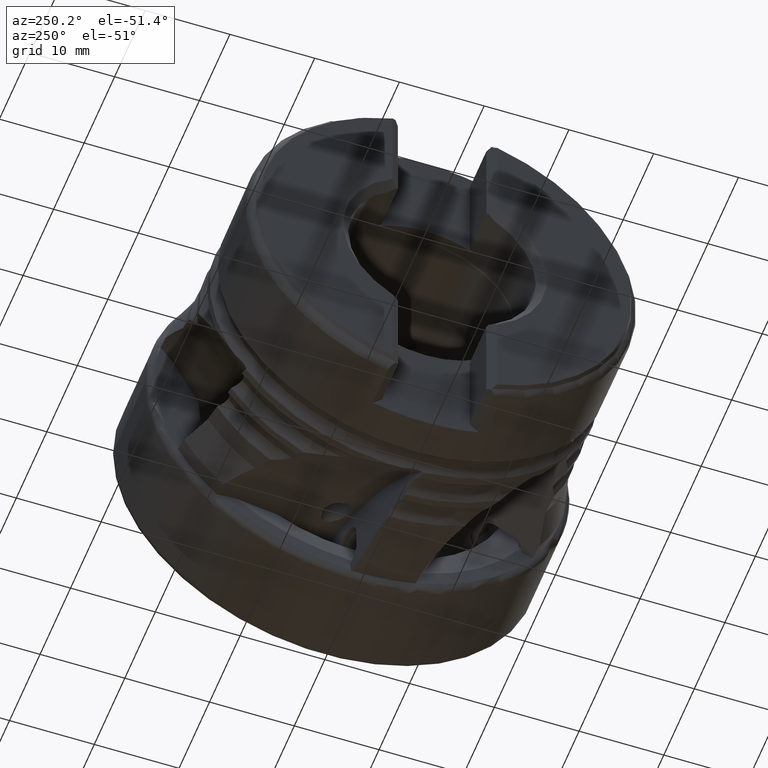
[diagram: clean part render]
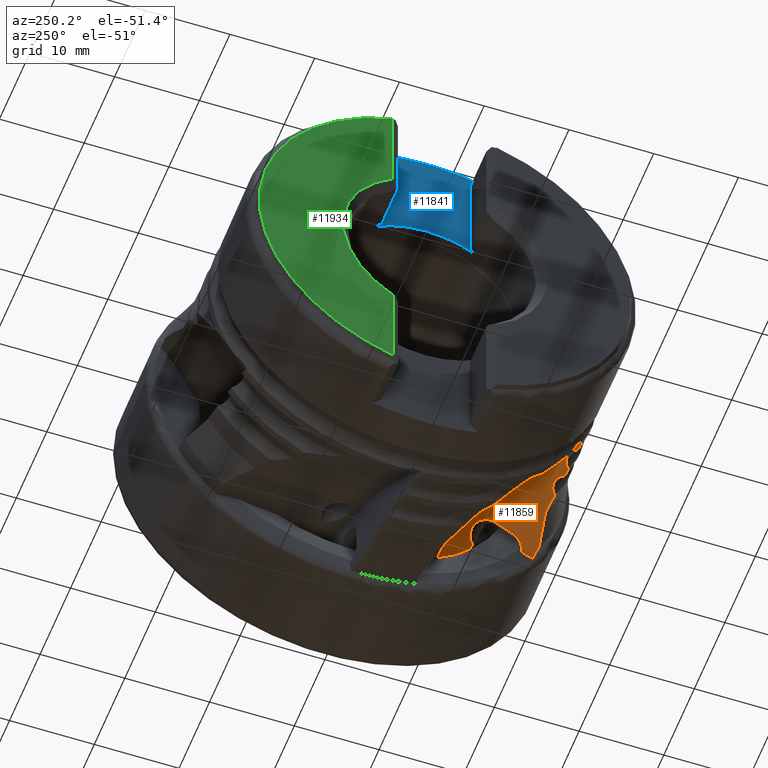
[diagram: same view with three faces highlighted in distinct colors, each labeled with its STEP entity id]
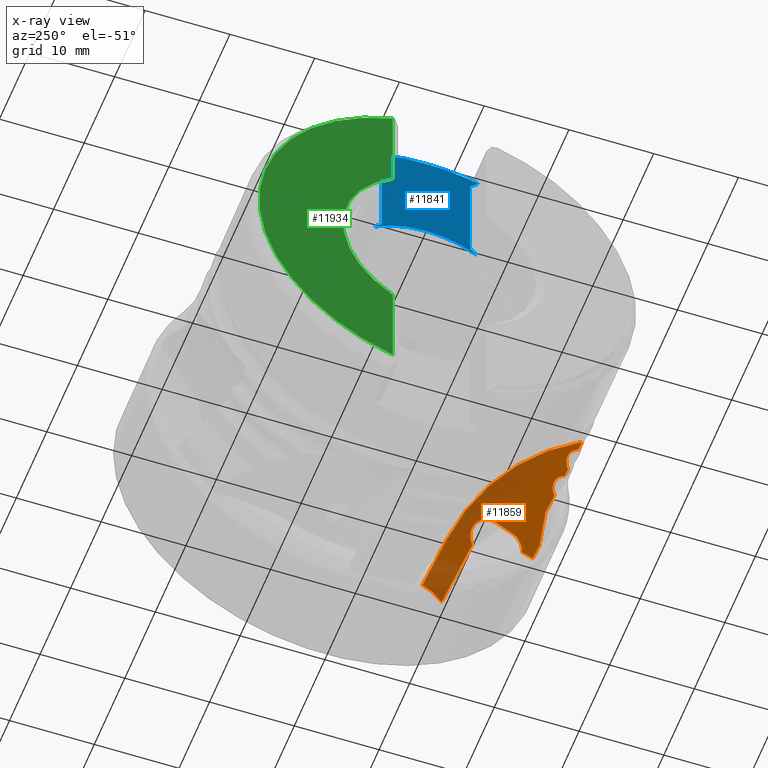
[diagram: x-ray of the same camera — body ghosted, the three highlighted faces saturated]
A machine part, auxiliary view with three faces highlighted in distinct colors.
The next image is the same camera in x-ray (body ghosted, the three faces saturated) — at least one of them is partly hidden behind the body in this view.
Their STEP definitions:

[orange] entity #11859 — the highlighted planar face has unit normal (0.2079, -0.4891, 0.8471).
#557 = EDGE_CURVE ( 'NONE', #4841, #4867, #770, .T. ) ;
#558 = EDGE_CURVE ( 'NONE', #7038, #4891, #764, .T. ) ;
#559 = EDGE_CURVE ( 'NONE', #7088, #4745, #769, .T. ) ;
#561 = EDGE_CURVE ( 'NONE', #4907, #12460, #768, .T. ) ;
#562 = EDGE_CURVE ( 'NONE', #4877, #4912, #5706, .T. ) ;
#564 = EDGE_CURVE ( 'NONE', #12463, #4824, #11466, .T. ) ;
#566 = EDGE_CURVE ( 'NONE', #4824, #4819, #11468, .T. ) ;
#567 = EDGE_CURVE ( 'NONE', #4745, #4761, #11469, .T. ) ;
#578 = EDGE_CURVE ( 'NONE', #12480, #4865, #11460, .T. ) ;
#579 = EDGE_CURVE ( 'NONE', #4862, #12462, #11462, .T. ) ;
#580 = EDGE_CURVE ( 'NONE', #4865, #4924, #11459, .T. ) ;
#582 = EDGE_CURVE ( 'NONE', #4924, #4855, #11464, .T. ) ;
#583 = EDGE_CURVE ( 'NONE', #4855, #12625, #11461, .T. ) ;
#584 = EDGE_CURVE ( 'NONE', #4877, #12616, #5725, .T. ) ;
#587 = EDGE_CURVE ( 'NONE', #4891, #4862, #11455, .T. ) ;
#593 = EDGE_CURVE ( 'NONE', #4819, #4907, #9469, .T. ) ;
#608 = EDGE_CURVE ( 'NONE', #4851, #4856, #5741, .T. ) ;
#609 = EDGE_CURVE ( 'NONE', #4761, #4913, #5738, .T. ) ;
#610 = EDGE_CURVE ( 'NONE', #4856, #4841, #5745, .T. ) ;
#612 = EDGE_CURVE ( 'NONE', #4913, #4851, #5748, .T. ) ;
#617 = EDGE_CURVE ( 'NONE', #4867, #4912, #5749, .T. ) ;
#764 = B_SPLINE_CURVE_WITH_KNOTS ( 'NONE', 3,
 ( #1525, #1518, #1506, #1527 ),
 .UNSPECIFIED., .F., .F.,
 ( 4, 4 ),
 ( 2.137576282117429100E-007, 0.004010652003669368600 ),
 .UNSPECIFIED. ) ;
#768 = B_SPLINE_CURVE_WITH_KNOTS ( 'NONE', 3,
 ( #1538, #1528, #1532, #1539 ),
 .UNSPECIFIED., .F., .F.,
 ( 4, 4 ),
 ( 2.015926449780618800E-007, 0.0001988569394257964800 ),
 .UNSPECIFIED. ) ;
#769 = B_SPLINE_CURVE_WITH_KNOTS ( 'NONE', 3,
 ( #1530, #1529, #1522, #1531 ),
 .UNSPECIFIED., .F., .F.,
 ( 4, 4 ),
 ( 0.0002425770715083387800, 0.0002902572041212796500 ),
 .UNSPECIFIED. ) ;
#770 = B_SPLINE_CURVE_WITH_KNOTS ( 'NONE', 3,
 ( #1517, #1516, #1523, #1524 ),
 .UNSPECIFIED., .F., .F.,
 ( 4, 4 ),
 ( 0.0009686665777163052100, 0.002594467849687828000 ),
 .UNSPECIFIED. ) ;
#820 = DIRECTION ( 'NONE',  ( 0.0000000000000000000, 0.8660254037844396000, 0.4999999999999981100 ) ) ;
#821 = CARTESIAN_POINT ( 'NONE',  ( -1.399999999999999200, 13.64783196858371600, 4.247279619109179700 ) ) ;
#1506 = CARTESIAN_POINT ( 'NONE',  ( -15.55044023032530900, -20.19379681032902600, -11.81812147326370000 ) ) ;
#1516 = CARTESIAN_POINT ( 'NONE',  ( -1.149482092380346400, -12.98690435176323300, -11.19177947410637800 ) ) ;
#1517 = CARTESIAN_POINT ( 'NONE',  ( -1.024066721879104200, -13.42957915904842500, -11.47813973847414100 ) ) ;
#1518 = CARTESIAN_POINT ( 'NONE',  ( -14.30077424985369200, -20.40177048219377200, -12.24491211746680700 ) ) ;
#1522 = CARTESIAN_POINT ( 'NONE',  ( -11.40116357566264100, -20.39272210744054100, -12.95136609103109200 ) ) ;
#1523 = CARTESIAN_POINT ( 'NONE',  ( -1.274803423622056200, -12.54419926205143200, -10.90542480708985300 ) ) ;
#1524 = CARTESIAN_POINT ( 'NONE',  ( -1.399999999999999700, -12.10145407478267100, -10.61907760946900800 ) ) ;
#1525 = CARTESIAN_POINT ( 'NONE',  ( -13.05000000000000600, -20.60644232252976600, -12.67006846107210900 ) ) ;
#1527 = CARTESIAN_POINT ( 'NONE',  ( -16.79882536534509900, -19.98200715656967200, -11.38944204053905000 ) ) ;
#1528 = CARTESIAN_POINT ( 'NONE',  ( -22.60590223760307900, -20.56453872780511500, -10.30048263636702500 ) ) ;
#1529 = CARTESIAN_POINT ( 'NONE',  ( -11.40185207984224100, -20.40677944521225500, -12.95931311287903200 ) ) ;
#1530 = CARTESIAN_POINT ( 'NONE',  ( -11.40205256937151800, -20.42070390249654100, -12.96730319405552800 ) ) ;
#1531 = CARTESIAN_POINT ( 'NONE',  ( -11.40000000000000600, -20.37874676722716700, -12.94358301164896300 ) ) ;
#1532 = CARTESIAN_POINT ( 'NONE',  ( -22.66906056096986400, -20.54165454406415800, -10.27176891986690400 ) ) ;
#1538 = CARTESIAN_POINT ( 'NONE',  ( -22.54021278201284100, -20.55826719501358100, -10.31298453108645500 ) ) ;
#1539 = CARTESIAN_POINT ( 'NONE',  ( -22.70607010177604200, -20.49752539953572800, -10.23720735518743300 ) ) ;
#1540 = CARTESIAN_POINT ( 'NONE',  ( -7.547279779810859100, -11.63785871310080800, -8.842637417601251200 ) ) ;
#1541 = DIRECTION ( 'NONE',  ( 0.9781476007338055800, 0.1039558454088792100, -0.1800568059919560600 ) ) ;
#1542 = CARTESIAN_POINT ( 'NONE',  ( -20.57133231294717000, -19.71692741096195400, -10.31047718064100800 ) ) ;
#1543 = CARTESIAN_POINT ( 'NONE',  ( -20.69283531685525500, -19.74177674621488900, -10.29500235385387100 ) ) ;
#1547 = CARTESIAN_POINT ( 'NONE',  ( -20.45000000000000300, -19.70494015132177200, -10.33333603599665700 ) ) ;
#1548 = CARTESIAN_POINT ( 'NONE',  ( -20.92736265155603100, -19.81507859995505400, -10.27976100301836100 ) ) ;
#1549 = CARTESIAN_POINT ( 'NONE',  ( -21.04320250658468100, -19.86459930032393800, -10.27992015411785300 ) ) ;
#1550 = CARTESIAN_POINT ( 'NONE',  ( -21.36618140685761300, -20.04411331757878800, -10.30429094509144300 ) ) ;
#1551 = CARTESIAN_POINT ( 'NONE',  ( -21.55471376667649300, -20.20770841106819700, -10.35246938927533300 ) ) ;
#1552 = CARTESIAN_POINT ( 'NONE',  ( -21.69392989822397400, -20.40034533142523200, -10.42951927445906400 ) ) ;
#1553 = CARTESIAN_POINT ( 'NONE',  ( -21.69392989822397400, -20.40034533142523200, -10.42951927445906400 ) ) ;
#1554 = CARTESIAN_POINT ( 'NONE',  ( -11.40000000000000600, -20.37874676722716700, -12.94358301164896300 ) ) ;
#1555 = CARTESIAN_POINT ( 'NONE',  ( -21.73105863074181700, -20.45172130782605200, -10.45006836274156100 ) ) ;
#1560 = CARTESIAN_POINT ( 'NONE',  ( -11.36686963164595300, -19.98082836448712400, -12.72197620502739700 ) ) ;
#1562 = CARTESIAN_POINT ( 'NONE',  ( -21.79463535868212500, -20.48661363066085500, -10.45460923499195300 ) ) ;
#1563 = CARTESIAN_POINT ( 'NONE',  ( -21.85978721798716900, -20.49290960267422400, -10.44225339745318800 ) ) ;
#1566 = CARTESIAN_POINT ( 'NONE',  ( -11.33374235923474100, -19.58291008690244400, -12.50036871079865400 ) ) ;
#1567 = CARTESIAN_POINT ( 'NONE',  ( -11.30061877378876800, -19.18499195844299300, -12.27876039773706500 ) ) ;
#1594 = CARTESIAN_POINT ( 'NONE',  ( -24.07098776238456800, -20.05111872187188700, -9.644470073474474600 ) ) ;
#1596 = CARTESIAN_POINT ( 'NONE',  ( -24.19256349179416100, -20.07521574707099500, -9.628543050588074700 ) ) ;
#1602 = CARTESIAN_POINT ( 'NONE',  ( -19.10572477860347700, -20.22030288043726600, -10.96081864930261000 ) ) ;
#1603 = CARTESIAN_POINT ( 'NONE',  ( -23.95000000000000600, -20.03991395728009600, -9.667696136350707900 ) ) ;
#1604 = CARTESIAN_POINT ( 'NONE',  ( -19.16900585699800500, -20.19791887175685500, -10.93236358011545500 ) ) ;
#1605 = CARTESIAN_POINT ( 'NONE',  ( -24.42692924046616900, -20.14706926265063900, -9.612505160867490500 ) ) ;
#1606 = CARTESIAN_POINT ( 'NONE',  ( -24.54272077775723600, -20.19587902241915200, -9.612265709285686900 ) ) ;
#1607 = CARTESIAN_POINT ( 'NONE',  ( -24.86612945412110800, -20.37386689524632600, -9.635649896473419000 ) ) ;
#1608 = CARTESIAN_POINT ( 'NONE',  ( -25.05472308990571100, -20.53673354133000500, -9.683392731828981000 ) ) ;
#1609 = CARTESIAN_POINT ( 'NONE',  ( -25.19392989822397800, -20.72891297589699600, -9.760180775754379900 ) ) ;
#1610 = CARTESIAN_POINT ( 'NONE',  ( -25.19392989822397800, -20.72891297589699600, -9.760180775754379900 ) ) ;
#1611 = CARTESIAN_POINT ( 'NONE',  ( -19.04021278201283700, -20.21365711437073300, -10.97306092494931200 ) ) ;
#1612 = CARTESIAN_POINT ( 'NONE',  ( -25.23105913155223200, -20.78017106558862900, -9.780661679195095100 ) ) ;
#1613 = CARTESIAN_POINT ( 'NONE',  ( -19.20607010177603500, -20.15401519682392000, -10.89791876386984800 ) ) ;
#1615 = CARTESIAN_POINT ( 'NONE',  ( -25.35978721798717200, -20.82065005746953500, -9.772437320566130100 ) ) ;
#1617 = CARTESIAN_POINT ( 'NONE',  ( -25.29475390656892100, -20.81475555232528100, -9.784995848814174800 ) ) ;
#1618 = CARTESIAN_POINT ( 'NONE',  ( -25.35978721798717200, -20.82065005746953500, -9.772437320566130100 ) ) ;
#1619 = CARTESIAN_POINT ( 'NONE',  ( -26.04021278201283700, -20.88192434008013300, -9.640810954228317800 ) ) ;
#1620 = CARTESIAN_POINT ( 'NONE',  ( -25.58665846267767200, -20.84121326885542700, -9.728626404795681600 ) ) ;
#1624 = CARTESIAN_POINT ( 'NONE',  ( -26.10609858929016600, -20.88781895826997800, -9.628043255365812000 ) ) ;
#1625 = CARTESIAN_POINT ( 'NONE',  ( -25.81346773719534200, -20.86163809755127500, -9.684750803650057800 ) ) ;
#1626 = CARTESIAN_POINT ( 'NONE',  ( -26.04021278201283700, -20.88192434008013300, -9.640810954228317800 ) ) ;
#1627 = CARTESIAN_POINT ( 'NONE',  ( -26.16913082770867800, -20.86438258675172400, -9.599041679289664200 ) ) ;
#1628 = CARTESIAN_POINT ( 'NONE',  ( -26.20607010177603500, -20.81999527750117800, -9.564348309348872600 ) ) ;
#1632 = CARTESIAN_POINT ( 'NONE',  ( -7.547279779810860800, -34.24112175187469400, -21.89263741760120400 ) ) ;
#1633 = DIRECTION ( 'NONE',  ( 0.2079116908177598100, -0.4890738003669008500, 0.8471006708862749400 ) ) ;
#1634 = DIRECTION ( 'NONE',  ( 0.0000000000000000000, -0.8660254037844397100, -0.4999999999999981100 ) ) ;
#1635 = CARTESIAN_POINT ( 'NONE',  ( -16.79882536534509900, -19.98200715656967200, -11.38944204053905000 ) ) ;
#1638 = CARTESIAN_POINT ( 'NONE',  ( -17.54606420872142500, -20.06066014661924200, -11.25145067937648800 ) ) ;
#1643 = CARTESIAN_POINT ( 'NONE',  ( -18.29322007020580500, -20.13787956103042400, -11.11265200994039800 ) ) ;
#1644 = CARTESIAN_POINT ( 'NONE',  ( -19.04021278201283700, -20.21365711437073300, -10.97306092494931200 ) ) ;
#1654 = CARTESIAN_POINT ( 'NONE',  ( -21.85978721798716900, -20.49290960267422400, -10.44225339745318800 ) ) ;
#1660 = CARTESIAN_POINT ( 'NONE',  ( -22.08663503382471700, -20.51483111842514300, -10.39923244943189600 ) ) ;
#1670 = CARTESIAN_POINT ( 'NONE',  ( -22.31344430484151400, -20.53661705454752400, -10.35614268488462900 ) ) ;
#1672 = CARTESIAN_POINT ( 'NONE',  ( -22.54021278201284100, -20.55826719501358100, -10.31298453108645500 ) ) ;
#1739 = DIRECTION ( 'NONE',  ( 0.9781476007338055800, 0.1039558454088791200, -0.1800568059919560900 ) ) ;
#1740 = CARTESIAN_POINT ( 'NONE',  ( -7.547279779810852000, -14.12285502836590100, -10.27735070915477800 ) ) ;
#1741 = CARTESIAN_POINT ( 'NONE',  ( -10.48756968981897900, -15.43660024115562600, -10.31417952811447100 ) ) ;
#1742 = DIRECTION ( 'NONE',  ( -0.2079116908177597000, 0.4890738003669010700, -0.8471006708862750500 ) ) ;
#1744 = DIRECTION ( 'NONE',  ( 0.0000000000000000000, -0.8660254037844398200, -0.4999999999999977800 ) ) ;
#1745 = CARTESIAN_POINT ( 'NONE',  ( -12.54167965135997100, -30.16436582265319500, -18.31309989437627900 ) ) ;
#1747 = DIRECTION ( 'NONE',  ( 2.422603434897486600E-017, 0.8660254037844397100, 0.4999999999999981700 ) ) ;
#1748 = CARTESIAN_POINT ( 'NONE',  ( -10.48756968981897900, -17.42845866985983600, -11.46417952811446600 ) ) ;
#1749 = DIRECTION ( 'NONE',  ( -0.2079116908177597000, 0.4890738003669010700, -0.8471006708862750500 ) ) ;
#1750 = DIRECTION ( 'NONE',  ( 0.0000000000000000000, -0.8660254037844396000, -0.4999999999999986100 ) ) ;
#2401 =( BOUNDED_CURVE ( )  B_SPLINE_CURVE ( 3, ( #6302, #6312, #6313, #6314 ),
 .UNSPECIFIED., .F., .F. ) 
 B_SPLINE_CURVE_WITH_KNOTS ( ( 4, 4 ),
 ( 1.528631621026970400, 1.543121029144235900 ),
 .UNSPECIFIED. ) 
 CURVE ( )  GEOMETRIC_REPRESENTATION_ITEM ( )  RATIONAL_B_SPLINE_CURVE ( ( 1.000000000000000000, 0.9999825048308883500, 0.9999825048308883500, 1.000000000000000000 ) ) 
 REPRESENTATION_ITEM ( '' )  );
#2431 = B_SPLINE_CURVE_WITH_KNOTS ( 'NONE', 3,
 ( #6618, #6614, #6621, #6622 ),
 .UNSPECIFIED., .F., .F.,
 ( 4, 4 ),
 ( 3.595619030851296600E-007, 1.868824423346793700E-005 ),
 .UNSPECIFIED. ) ;
#2507 = B_SPLINE_CURVE_WITH_KNOTS ( 'NONE', 3,
 ( #7759, #7766, #7772, #7773, #7774, #7775, #7776, #7777, #7778, #7779 ),
 .UNSPECIFIED., .F., .F.,
 ( 4, 2, 2, 2, 4 ),
 ( 3.563221534652673900E-007, 0.0003723061227592907800, 0.0007442559233651162300, 0.001116205723970941900, 0.001488155524576767300 ),
 .UNSPECIFIED. ) ;
#2533 = B_SPLINE_CURVE_WITH_KNOTS ( 'NONE', 3,
 ( #8023, #8024, #8029, #8030, #8031, #8032, #8033, #8034, #8035, #8036 ),
 .UNSPECIFIED., .F., .F.,
 ( 4, 2, 2, 2, 4 ),
 ( 3.578053203621264000E-007, 0.0003733880702147049800, 0.0007464183351090478200, 0.001119448600003390600, 0.001492478864897733500 ),
 .UNSPECIFIED. ) ;
#2861 = EDGE_LOOP ( 'NONE', ( #9767, #9729, #9744, #9790, #9837, #9709, #9926, #9779, #9746, #9840, #9886, #9824, #9889, #9884, #9925, #9904, #9717, #9900, #9776, #9740, #9791, #9802, #12766, #12558, #12408 ) ) ;
#3990 = AXIS2_PLACEMENT_3D ( 'NONE', #1632, #1633, #1634 ) ;
#3994 = AXIS2_PLACEMENT_3D ( 'NONE', #1741, #1742, #1744 ) ;
#3995 = AXIS2_PLACEMENT_3D ( 'NONE', #1748, #1749, #1750 ) ;
#4745 = VERTEX_POINT ( 'NONE', #7114 ) ;
#4761 = VERTEX_POINT ( 'NONE', #7143 ) ;
#4819 = VERTEX_POINT ( 'NONE', #7152 ) ;
#4824 = VERTEX_POINT ( 'NONE', #7162 ) ;
#4841 = VERTEX_POINT ( 'NONE', #7171 ) ;
#4851 = VERTEX_POINT ( 'NONE', #7166 ) ;
#4855 = VERTEX_POINT ( 'NONE', #7169 ) ;
#4856 = VERTEX_POINT ( 'NONE', #7179 ) ;
#4862 = VERTEX_POINT ( 'NONE', #7184 ) ;
#4865 = VERTEX_POINT ( 'NONE', #7178 ) ;
#4867 = VERTEX_POINT ( 'NONE', #7188 ) ;
#4877 = VERTEX_POINT ( 'NONE', #7196 ) ;
#4891 = VERTEX_POINT ( 'NONE', #7206 ) ;
#4907 = VERTEX_POINT ( 'NONE', #7218 ) ;
#4912 = VERTEX_POINT ( 'NONE', #7216 ) ;
#4913 = VERTEX_POINT ( 'NONE', #7222 ) ;
#4924 = VERTEX_POINT ( 'NONE', #7230 ) ;
#5225 = PLANE ( 'NONE',  #9148 ) ;
#5226 = CARTESIAN_POINT ( 'NONE',  ( -7.547279779810859100, -29.63356959050235400, -19.23246593692766000 ) ) ;
#5231 = DIRECTION ( 'NONE',  ( 0.2079116908177596500, -0.4890738003669010100, 0.8471006708862749400 ) ) ;
#5232 = DIRECTION ( 'NONE',  ( 0.0000000000000000000, -0.8660254037844396000, -0.4999999999999981100 ) ) ;
#5706 = LINE ( 'NONE', #1540, #5715 ) ;
#5715 = VECTOR ( 'NONE', #1541, 1000.000000000000000 ) ;
#5725 = CIRCLE ( 'NONE', #3990, 26.10000000000000100 ) ;
#5738 = CIRCLE ( 'NONE', #3995, 2.099999999999996500 ) ;
#5741 = CIRCLE ( 'NONE', #3994, 2.100000000000000100 ) ;
#5745 = LINE ( 'NONE', #1740, #5747 ) ;
#5747 = VECTOR ( 'NONE', #1739, 1000.000000000000100 ) ;
#5748 = LINE ( 'NONE', #1745, #5750 ) ;
#5749 = LINE ( 'NONE', #821, #5755 ) ;
#5750 = VECTOR ( 'NONE', #1747, 1000.000000000000000 ) ;
#5755 = VECTOR ( 'NONE', #820, 1000.000000000000200 ) ;
#6077 = FACE_OUTER_BOUND ( 'NONE', #2861, .T. ) ;
#6302 = CARTESIAN_POINT ( 'NONE',  ( -11.40205256937151800, -20.42070390249654100, -12.96730319405552800 ) ) ;
#6312 = CARTESIAN_POINT ( 'NONE',  ( -11.95122454787713700, -20.48333396641515200, -12.86867436032372300 ) ) ;
#6313 = CARTESIAN_POINT ( 'NONE',  ( -12.50054996862778000, -20.54524785628687100, -12.76959438257494900 ) ) ;
#6314 = CARTESIAN_POINT ( 'NONE',  ( -13.05000000000000600, -20.60644232252976600, -12.67006846107210900 ) ) ;
#6614 = CARTESIAN_POINT ( 'NONE',  ( -26.20946896057359500, -20.81591110962416400, -9.561156100822378400 ) ) ;
#6618 = CARTESIAN_POINT ( 'NONE',  ( -26.20607010177603500, -20.81999527750117800, -9.564348309348872600 ) ) ;
#6621 = CARTESIAN_POINT ( 'NONE',  ( -26.21289446719891800, -20.81185241446177200, -9.557972058553643200 ) ) ;
#6622 = CARTESIAN_POINT ( 'NONE',  ( -26.21634643813227000, -20.80781901658711800, -9.554796126302818500 ) ) ;
#7038 = VERTEX_POINT ( 'NONE', #7308 ) ;
#7088 = VERTEX_POINT ( 'NONE', #7327 ) ;
#7114 = CARTESIAN_POINT ( 'NONE',  ( -11.40000000000000600, -20.37874676722716700, -12.94358301164896300 ) ) ;
#7143 = CARTESIAN_POINT ( 'NONE',  ( -11.30061877378876800, -19.18499195844299300, -12.27876039773706500 ) ) ;
#7152 = CARTESIAN_POINT ( 'NONE',  ( -21.85978721798716900, -20.49290960267422400, -10.44225339745318800 ) ) ;
#7162 = CARTESIAN_POINT ( 'NONE',  ( -21.69392989822397400, -20.40034533142523200, -10.42951927445906400 ) ) ;
#7166 = CARTESIAN_POINT ( 'NONE',  ( -12.54167965135997100, -15.65490751651427100, -9.936060235531362700 ) ) ;
#7169 = CARTESIAN_POINT ( 'NONE',  ( -26.04021278201283700, -20.88192434008013300, -9.640810954228317800 ) ) ;
#7171 = CARTESIAN_POINT ( 'NONE',  ( -1.024066721879104200, -13.42957915904842500, -11.47813973847414100 ) ) ;
#7178 = CARTESIAN_POINT ( 'NONE',  ( -25.19392989822397800, -20.72891297589699600, -9.760180775754379900 ) ) ;
#7179 = CARTESIAN_POINT ( 'NONE',  ( -8.772791702696958200, -14.25310032867304800, -10.05175923157573900 ) ) ;
#7184 = CARTESIAN_POINT ( 'NONE',  ( -19.04021278201283700, -20.21365711437073300, -10.97306092494931200 ) ) ;
#7188 = CARTESIAN_POINT ( 'NONE',  ( -1.399999999999999700, -12.10145407478267100, -10.61907760946900800 ) ) ;
#7196 = CARTESIAN_POINT ( 'NONE',  ( -7.547279779810859100, -11.63785871310080800, -8.842637417601251200 ) ) ;
#7206 = CARTESIAN_POINT ( 'NONE',  ( -16.79882536534509900, -19.98200715656967200, -11.38944204053905000 ) ) ;
#7216 = CARTESIAN_POINT ( 'NONE',  ( -1.399999999999999200, -10.98453638629068900, -9.974224881355507200 ) ) ;
#7218 = CARTESIAN_POINT ( 'NONE',  ( -22.54021278201284100, -20.55826719501358100, -10.31298453108645500 ) ) ;
#7222 = CARTESIAN_POINT ( 'NONE',  ( -12.54167965135997100, -17.64676594521848300, -11.08606023553135800 ) ) ;
#7230 = CARTESIAN_POINT ( 'NONE',  ( -25.35978721798717200, -20.82065005746953500, -9.772437320566130100 ) ) ;
#7308 = CARTESIAN_POINT ( 'NONE',  ( -13.05000000000000600, -20.60644232252976600, -12.67006846107210900 ) ) ;
#7327 = CARTESIAN_POINT ( 'NONE',  ( -11.40205256937151800, -20.42070390249654100, -12.96730319405552800 ) ) ;
#7759 = CARTESIAN_POINT ( 'NONE',  ( -19.20607010177603500, -20.15401519682392000, -10.89791876386984800 ) ) ;
#7766 = CARTESIAN_POINT ( 'NONE',  ( -19.27567134904416700, -20.07157049699831900, -10.83323642144055100 ) ) ;
#7772 = CARTESIAN_POINT ( 'NONE',  ( -19.35627107594500600, -19.99976150713099800, -10.77199515123821500 ) ) ;
#7773 = CARTESIAN_POINT ( 'NONE',  ( -19.53832805790144200, -19.87631309876522300, -10.65603826376501600 ) ) ;
#7774 = CARTESIAN_POINT ( 'NONE',  ( -19.64053279862754700, -19.82484087704724700, -10.60123571533316800 ) ) ;
#7775 = CARTESIAN_POINT ( 'NONE',  ( -19.85538617789374500, -19.74774378854821700, -10.50399025412440900 ) ) ;
#7776 = CARTESIAN_POINT ( 'NONE',  ( -19.97063131988196000, -19.72102702526621300, -10.46027965094143800 ) ) ;
#7777 = CARTESIAN_POINT ( 'NONE',  ( -20.20748884565892600, -19.69369409362951700, -10.38636485950062700 ) ) ;
#7778 = CARTESIAN_POINT ( 'NONE',  ( -20.32779919056660100, -19.69286708689781700, -10.35635851499941400 ) ) ;
#7779 = CARTESIAN_POINT ( 'NONE',  ( -20.45000000000000300, -19.70494015132177200, -10.33333603599665700 ) ) ;
#8023 = CARTESIAN_POINT ( 'NONE',  ( -22.70607010177604200, -20.49752539953572800, -10.23720735518743300 ) ) ;
#8024 = CARTESIAN_POINT ( 'NONE',  ( -22.77558418213981600, -20.41463874835572400, -10.17229124619789500 ) ) ;
#8029 = CARTESIAN_POINT ( 'NONE',  ( -22.85606794167656400, -20.34230390571323000, -10.11077483768857000 ) ) ;
#8030 = CARTESIAN_POINT ( 'NONE',  ( -23.03783446700961000, -20.21764092512400200, -9.994188006049572700 ) ) ;
#8031 = CARTESIAN_POINT ( 'NONE',  ( -23.13992788980768400, -20.16543227851694900, -9.938987604290330700 ) ) ;
#8032 = CARTESIAN_POINT ( 'NONE',  ( -23.35465958373720200, -20.08677796136120400, -9.840872943046209200 ) ) ;
#8033 = CARTESIAN_POINT ( 'NONE',  ( -23.46979025412574400, -20.05922990909803600, -9.796710490761318700 ) ) ;
#8034 = CARTESIAN_POINT ( 'NONE',  ( -23.70703015989437600, -20.03019989521863000, -9.721722037400697400 ) ) ;
#8035 = CARTESIAN_POINT ( 'NONE',  ( -23.82755636145406100, -20.02857436293905400, -9.691201684280613900 ) ) ;
#8036 = CARTESIAN_POINT ( 'NONE',  ( -23.95000000000000600, -20.03991395728009600, -9.667696136350707900 ) ) ;
#8496 = CARTESIAN_POINT ( 'NONE',  ( -22.70607010177604200, -20.49752539953572800, -10.23720735518743300 ) ) ;
#8498 = CARTESIAN_POINT ( 'NONE',  ( -19.20607010177603500, -20.15401519682392000, -10.89791876386984800 ) ) ;
#8499 = CARTESIAN_POINT ( 'NONE',  ( -20.45000000000000300, -19.70494015132177200, -10.33333603599665700 ) ) ;
#8515 = CARTESIAN_POINT ( 'NONE',  ( -23.95000000000000600, -20.03991395728009600, -9.667696136350707900 ) ) ;
#8585 = CARTESIAN_POINT ( 'NONE',  ( -26.21634643813227000, -20.80781901658711800, -9.554796126302818500 ) ) ;
#8587 = CARTESIAN_POINT ( 'NONE',  ( -26.20607010177603500, -20.81999527750117800, -9.564348309348872600 ) ) ;
#9148 = AXIS2_PLACEMENT_3D ( 'NONE', #5226, #5231, #5232 ) ;
#9469 =( BOUNDED_CURVE ( )  B_SPLINE_CURVE ( 3, ( #1654, #1660, #1670, #1672 ),
 .UNSPECIFIED., .F., .T. ) 
 B_SPLINE_CURVE_WITH_KNOTS ( ( 4, 4 ),
 ( 1.623133176845004800, 1.629431093210692100 ),
 .UNSPECIFIED. ) 
 CURVE ( )  GEOMETRIC_REPRESENTATION_ITEM ( )  RATIONAL_B_SPLINE_CURVE ( ( 1.000000000000000000, 0.9999966946901853700, 0.9999966946901853700, 1.000000000000000000 ) ) 
 REPRESENTATION_ITEM ( '' )  );
#9709 = ORIENTED_EDGE ( 'NONE', *, *, #11164, .T. ) ;
#9717 = ORIENTED_EDGE ( 'NONE', *, *, #584, .F. ) ;
#9729 = ORIENTED_EDGE ( 'NONE', *, *, #10926, .T. ) ;
#9740 = ORIENTED_EDGE ( 'NONE', *, *, #557, .F. ) ;
#9744 = ORIENTED_EDGE ( 'NONE', *, *, #558, .T. ) ;
#9746 = ORIENTED_EDGE ( 'NONE', *, *, #593, .T. ) ;
#9767 = ORIENTED_EDGE ( 'NONE', *, *, #559, .F. ) ;
#9776 = ORIENTED_EDGE ( 'NONE', *, *, #617, .F. ) ;
#9779 = ORIENTED_EDGE ( 'NONE', *, *, #566, .T. ) ;
#9790 = ORIENTED_EDGE ( 'NONE', *, *, #587, .T. ) ;
#9791 = ORIENTED_EDGE ( 'NONE', *, *, #610, .F. ) ;
#9802 = ORIENTED_EDGE ( 'NONE', *, *, #608, .F. ) ;
#9824 = ORIENTED_EDGE ( 'NONE', *, *, #578, .T. ) ;
#9837 = ORIENTED_EDGE ( 'NONE', *, *, #579, .T. ) ;
#9840 = ORIENTED_EDGE ( 'NONE', *, *, #561, .T. ) ;
#9884 = ORIENTED_EDGE ( 'NONE', *, *, #582, .T. ) ;
#9886 = ORIENTED_EDGE ( 'NONE', *, *, #11232, .T. ) ;
#9889 = ORIENTED_EDGE ( 'NONE', *, *, #580, .T. ) ;
#9900 = ORIENTED_EDGE ( 'NONE', *, *, #562, .T. ) ;
#9904 = ORIENTED_EDGE ( 'NONE', *, *, #11003, .T. ) ;
#9925 = ORIENTED_EDGE ( 'NONE', *, *, #583, .T. ) ;
#9926 = ORIENTED_EDGE ( 'NONE', *, *, #564, .T. ) ;
#10926 = EDGE_CURVE ( 'NONE', #7088, #7038, #2401, .T. ) ;
#11003 = EDGE_CURVE ( 'NONE', #12625, #12616, #2431, .T. ) ;
#11164 = EDGE_CURVE ( 'NONE', #12462, #12463, #2507, .T. ) ;
#11232 = EDGE_CURVE ( 'NONE', #12460, #12480, #2533, .T. ) ;
#11455 =( BOUNDED_CURVE ( )  B_SPLINE_CURVE ( 3, ( #1635, #1638, #1643, #1644 ),
 .UNSPECIFIED., .F., .F. ) 
 B_SPLINE_CURVE_WITH_KNOTS ( ( 4, 4 ),
 ( 1.576337982821785600, 1.597054954700028600 ),
 .UNSPECIFIED. ) 
 CURVE ( )  GEOMETRIC_REPRESENTATION_ITEM ( )  RATIONAL_B_SPLINE_CURVE ( ( 1.000000000000000000, 0.9999642342428183300, 0.9999642342428183300, 1.000000000000000000 ) ) 
 REPRESENTATION_ITEM ( '' )  );
#11459 = B_SPLINE_CURVE_WITH_KNOTS ( 'NONE', 3,
 ( #1610, #1612, #1617, #1618 ),
 .UNSPECIFIED., .F., .F.,
 ( 4, 4 ),
 ( 3.536833675043482000E-007, 0.0001971042872481977500 ),
 .UNSPECIFIED. ) ;
#11460 = B_SPLINE_CURVE_WITH_KNOTS ( 'NONE', 3,
 ( #1603, #1594, #1596, #1605, #1606, #1607, #1608, #1609 ),
 .UNSPECIFIED., .F., .F.,
 ( 4, 2, 2, 4 ),
 ( 0.001492478864897733500, 0.001861073735053866300, 0.002229668605209999100, 0.002966858345522272900 ),
 .UNSPECIFIED. ) ;
#11461 = B_SPLINE_CURVE_WITH_KNOTS ( 'NONE', 3,
 ( #1619, #1624, #1627, #1628 ),
 .UNSPECIFIED., .F., .F.,
 ( 4, 4 ),
 ( 2.015971228662635800E-007, 0.0001994559190447882400 ),
 .UNSPECIFIED. ) ;
#11462 = B_SPLINE_CURVE_WITH_KNOTS ( 'NONE', 3,
 ( #1611, #1602, #1604, #1613 ),
 .UNSPECIFIED., .F., .F.,
 ( 4, 4 ),
 ( 2.015964717329484800E-007, 0.0001983233195427591500 ),
 .UNSPECIFIED. ) ;
#11464 =( BOUNDED_CURVE ( )  B_SPLINE_CURVE ( 3, ( #1615, #1620, #1625, #1626 ),
 .UNSPECIFIED., .F., .T. ) 
 B_SPLINE_CURVE_WITH_KNOTS ( ( 4, 4 ),
 ( 1.655556303885017600, 1.661868908377236000 ),
 .UNSPECIFIED. ) 
 CURVE ( )  GEOMETRIC_REPRESENTATION_ITEM ( )  RATIONAL_B_SPLINE_CURVE ( ( 1.000000000000000000, 0.9999966792548005100, 0.9999966792548005100, 1.000000000000000000 ) ) 
 REPRESENTATION_ITEM ( '' )  );
#11466 = B_SPLINE_CURVE_WITH_KNOTS ( 'NONE', 3,
 ( #1547, #1542, #1543, #1548, #1549, #1550, #1551, #1552 ),
 .UNSPECIFIED., .F., .F.,
 ( 4, 2, 2, 4 ),
 ( 0.001488155524576767300, 0.001857461831277921000, 0.002226768137979074800, 0.002965380751381396000 ),
 .UNSPECIFIED. ) ;
#11468 = B_SPLINE_CURVE_WITH_KNOTS ( 'NONE', 3,
 ( #1553, #1555, #1562, #1563 ),
 .UNSPECIFIED., .F., .F.,
 ( 4, 4 ),
 ( 3.542747659726733300E-007, 0.0001974318490711817700 ),
 .UNSPECIFIED. ) ;
#11469 = B_SPLINE_CURVE_WITH_KNOTS ( 'NONE', 3,
 ( #1554, #1560, #1566, #1567 ),
 .UNSPECIFIED., .F., .F.,
 ( 4, 4 ),
 ( 2.756797365290787400E-006, 0.001372762738801746800 ),
 .UNSPECIFIED. ) ;
#11859 = ADVANCED_FACE ( 'NONE', ( #6077 ), #5225, .F. ) ;
#12408 = ORIENTED_EDGE ( 'NONE', *, *, #567, .F. ) ;
#12460 = VERTEX_POINT ( 'NONE', #8496 ) ;
#12462 = VERTEX_POINT ( 'NONE', #8498 ) ;
#12463 = VERTEX_POINT ( 'NONE', #8499 ) ;
#12480 = VERTEX_POINT ( 'NONE', #8515 ) ;
#12558 = ORIENTED_EDGE ( 'NONE', *, *, #609, .F. ) ;
#12616 = VERTEX_POINT ( 'NONE', #8585 ) ;
#12625 = VERTEX_POINT ( 'NONE', #8587 ) ;
#12766 = ORIENTED_EDGE ( 'NONE', *, *, #612, .F. ) ;

[blue] entity #11841 — the highlighted planar face has unit normal (-1, 0, -0).
#2057 = CIRCLE ( 'NONE', #8918, 22.99999999999999300 ) ;
#2215 = CIRCLE ( 'NONE', #8986, 11.07499999999999800 ) ;
#3764 = EDGE_CURVE ( 'NONE', #7033, #11295, #5771, .T. ) ;
#3775 = EDGE_CURVE ( 'NONE', #11343, #12660, #5778, .T. ) ;
#3811 = EDGE_CURVE ( 'NONE', #11405, #11407, #5804, .T. ) ;
#3815 = EDGE_CURVE ( 'NONE', #11394, #11428, #5808, .T. ) ;
#3817 = EDGE_CURVE ( 'NONE', #6879, #11405, #5812, .T. ) ;
#3819 = EDGE_CURVE ( 'NONE', #11428, #11343, #5820, .T. ) ;
#3820 = EDGE_CURVE ( 'NONE', #6900, #11394, #5822, .T. ) ;
#3821 = EDGE_CURVE ( 'NONE', #11407, #11295, #5824, .T. ) ;
#4012 = AXIS2_PLACEMENT_3D ( 'NONE', #10624, #10625, #10626 ) ;
#4017 = AXIS2_PLACEMENT_3D ( 'NONE', #10659, #10660, #10661 ) ;
#5105 = PLANE ( 'NONE',  #9061 ) ;
#5106 = CARTESIAN_POINT ( 'NONE',  ( -33.10000000000000100, -5.214999999999982100, 29.37999999999999900 ) ) ;
#5111 = DIRECTION ( 'NONE',  ( -1.000000000000000000, 0.0000000000000000000, -0.0000000000000000000 ) ) ;
#5112 = DIRECTION ( 'NONE',  ( -0.0000000000000000000, 0.0000000000000000000, 1.000000000000000000 ) ) ;
#5771 = CIRCLE ( 'NONE', #4012, 22.99999999999999300 ) ;
#5778 = CIRCLE ( 'NONE', #4017, 11.07499999999999800 ) ;
#5804 = LINE ( 'NONE', #11933, #5807 ) ;
#5807 = VECTOR ( 'NONE', #11935, 1000.000000000000000 ) ;
#5808 = LINE ( 'NONE', #11922, #5815 ) ;
#5812 = LINE ( 'NONE', #11938, #5819 ) ;
#5815 = VECTOR ( 'NONE', #11950, 1000.000000000000000 ) ;
#5819 = VECTOR ( 'NONE', #11958, 1000.000000000000000 ) ;
#5820 = LINE ( 'NONE', #11965, #5823 ) ;
#5822 = LINE ( 'NONE', #11969, #5825 ) ;
#5823 = VECTOR ( 'NONE', #11967, 999.9999999999998900 ) ;
#5824 = LINE ( 'NONE', #11973, #5827 ) ;
#5825 = VECTOR ( 'NONE', #11971, 1000.000000000000000 ) ;
#5827 = VECTOR ( 'NONE', #11975, 1000.000000000000100 ) ;
#6027 = FACE_OUTER_BOUND ( 'NONE', #10255, .T. ) ;
#6548 = CARTESIAN_POINT ( 'NONE',  ( -33.10000000000000100, 0.0000000000000000000, 0.0000000000000000000 ) ) ;
#6549 = DIRECTION ( 'NONE',  ( 1.000000000000000000, -0.0000000000000000000, 0.0000000000000000000 ) ) ;
#6550 = DIRECTION ( 'NONE',  ( 0.0000000000000000000, -7.993605777301127100E-015, 1.000000000000000000 ) ) ;
#6879 = VERTEX_POINT ( 'NONE', #7248 ) ;
#6900 = VERTEX_POINT ( 'NONE', #7258 ) ;
#7033 = VERTEX_POINT ( 'NONE', #7302 ) ;
#7084 = ORIENTED_EDGE ( 'NONE', *, *, #3820, .T. ) ;
#7248 = CARTESIAN_POINT ( 'NONE',  ( -33.10000000000000100, -6.038981557432568300, 9.283659124988876200 ) ) ;
#7258 = CARTESIAN_POINT ( 'NONE',  ( -33.10000000000000100, 6.232192890940973000, 22.13955220346844400 ) ) ;
#7302 = CARTESIAN_POINT ( 'NONE',  ( -33.10000000000000100, 2.816687638038911600E-015, 22.99999999999999300 ) ) ;
#7827 = CARTESIAN_POINT ( 'NONE',  ( -33.10000000000000100, 0.0000000000000000000, 0.0000000000000000000 ) ) ;
#7828 = DIRECTION ( 'NONE',  ( 1.000000000000000000, -0.0000000000000000000, 0.0000000000000000000 ) ) ;
#7829 = DIRECTION ( 'NONE',  ( 0.0000000000000000000, 0.0000000000000000000, 1.000000000000000000 ) ) ;
#8171 = CARTESIAN_POINT ( 'NONE',  ( -33.10000000000000100, -6.232192892913195300, 22.13955220291326900 ) ) ;
#8184 = CARTESIAN_POINT ( 'NONE',  ( -33.10000000000000100, 6.038981550504263200, 9.283659129495712000 ) ) ;
#8192 = CARTESIAN_POINT ( 'NONE',  ( -33.10000000000000100, 5.214999999999975000, 21.12235931288252600 ) ) ;
#8203 = CARTESIAN_POINT ( 'NONE',  ( -33.10000000000000100, -5.214999999999983000, 21.12235931000007100 ) ) ;
#8205 = CARTESIAN_POINT ( 'NONE',  ( -33.10000000000000100, -5.214999999999983900, 10.10764068328432900 ) ) ;
#8207 = CARTESIAN_POINT ( 'NONE',  ( -33.10000000000000100, 5.214999999999974100, 10.10764067999999200 ) ) ;
#8595 = CARTESIAN_POINT ( 'NONE',  ( -33.10000000000000100, 1.356296330055693400E-015, 11.07499999999999800 ) ) ;
#8918 = AXIS2_PLACEMENT_3D ( 'NONE', #6548, #6549, #6550 ) ;
#8986 = AXIS2_PLACEMENT_3D ( 'NONE', #7827, #7828, #7829 ) ;
#9061 = AXIS2_PLACEMENT_3D ( 'NONE', #5106, #5111, #5112 ) ;
#9734 = ORIENTED_EDGE ( 'NONE', *, *, #3815, .T. ) ;
#9823 = ORIENTED_EDGE ( 'NONE', *, *, #3819, .T. ) ;
#9838 = ORIENTED_EDGE ( 'NONE', *, *, #10981, .F. ) ;
#9852 = ORIENTED_EDGE ( 'NONE', *, *, #3775, .T. ) ;
#9861 = ORIENTED_EDGE ( 'NONE', *, *, #11182, .T. ) ;
#9887 = ORIENTED_EDGE ( 'NONE', *, *, #3821, .T. ) ;
#9888 = ORIENTED_EDGE ( 'NONE', *, *, #3764, .F. ) ;
#9902 = ORIENTED_EDGE ( 'NONE', *, *, #3817, .T. ) ;
#9922 = ORIENTED_EDGE ( 'NONE', *, *, #3811, .T. ) ;
#10255 = EDGE_LOOP ( 'NONE', ( #7084, #9734, #9823, #9852, #9861, #9902, #9922, #9887, #9888, #9838 ) ) ;
#10624 = CARTESIAN_POINT ( 'NONE',  ( -33.10000000000000100, 0.0000000000000000000, 0.0000000000000000000 ) ) ;
#10625 = DIRECTION ( 'NONE',  ( 1.000000000000000000, -0.0000000000000000000, 0.0000000000000000000 ) ) ;
#10626 = DIRECTION ( 'NONE',  ( 0.0000000000000000000, 0.0000000000000000000, 1.000000000000000000 ) ) ;
#10659 = CARTESIAN_POINT ( 'NONE',  ( -33.10000000000000100, 0.0000000000000000000, 0.0000000000000000000 ) ) ;
#10660 = DIRECTION ( 'NONE',  ( 1.000000000000000000, -0.0000000000000000000, 0.0000000000000000000 ) ) ;
#10661 = DIRECTION ( 'NONE',  ( 0.0000000000000000000, 2.664535259100375300E-015, 1.000000000000000000 ) ) ;
#10981 = EDGE_CURVE ( 'NONE', #6900, #7033, #2057, .T. ) ;
#11182 = EDGE_CURVE ( 'NONE', #12660, #6879, #2215, .T. ) ;
#11295 = VERTEX_POINT ( 'NONE', #8171 ) ;
#11343 = VERTEX_POINT ( 'NONE', #8184 ) ;
#11394 = VERTEX_POINT ( 'NONE', #8192 ) ;
#11405 = VERTEX_POINT ( 'NONE', #8205 ) ;
#11407 = VERTEX_POINT ( 'NONE', #8203 ) ;
#11428 = VERTEX_POINT ( 'NONE', #8207 ) ;
#11841 = ADVANCED_FACE ( 'NONE', ( #6027 ), #5105, .T. ) ;
#11922 = CARTESIAN_POINT ( 'NONE',  ( -33.10000000000000100, 5.214999999999974100, 10.10764067999999200 ) ) ;
#11933 = CARTESIAN_POINT ( 'NONE',  ( -33.10000000000000100, -5.214999999999983000, 21.12235931000007100 ) ) ;
#11935 = DIRECTION ( 'NONE',  ( -0.0000000000000000000, 7.874570085563999800E-017, 1.000000000000000000 ) ) ;
#11938 = CARTESIAN_POINT ( 'NONE',  ( -33.10000000000000100, -8.351320339999999100, 6.971320340000000100 ) ) ;
#11950 = DIRECTION ( 'NONE',  ( -0.0000000000000000000, -7.874570081155278000E-017, -1.000000000000000000 ) ) ;
#11958 = DIRECTION ( 'NONE',  ( 0.0000000000000000000, 0.7071067808163110600, 0.7071067815567840800 ) ) ;
#11965 = CARTESIAN_POINT ( 'NONE',  ( -33.10000000000000100, 5.214999999999974100, 10.10764067999999200 ) ) ;
#11967 = DIRECTION ( 'NONE',  ( 0.0000000000000000000, 0.7071067811865511300, -0.7071067811865440200 ) ) ;
#11969 = CARTESIAN_POINT ( 'NONE',  ( -33.10000000000000100, 13.47264069000000000, 29.37999999999999500 ) ) ;
#11971 = DIRECTION ( 'NONE',  ( 0.0000000000000000000, -0.7071067813099650700, -0.7071067810631300700 ) ) ;
#11973 = CARTESIAN_POINT ( 'NONE',  ( -33.10000000000000100, -5.214999999999983000, 21.12235931000007100 ) ) ;
#11975 = DIRECTION ( 'NONE',  ( 0.0000000000000000000, -0.7071067811865513500, 0.7071067811865435800 ) ) ;
#12660 = VERTEX_POINT ( 'NONE', #8595 ) ;

[green] entity #11934 — the highlighted planar face has unit normal (1, 0, -0).
#639 = EDGE_CURVE ( 'NONE', #11319, #9733, #5760, .T. ) ;
#912 = CARTESIAN_POINT ( 'NONE',  ( -39.39999999999999900, 0.0000000000000000000, 1.999422548969621900E-017 ) ) ;
#913 = DIRECTION ( 'NONE',  ( -1.000000000000000000, -0.0000000000000000000, 1.332948365979802600E-016 ) ) ;
#914 = DIRECTION ( 'NONE',  ( 0.0000000000000000000, 0.0000000000000000000, -1.000000000000000000 ) ) ;
#1286 = CARTESIAN_POINT ( 'NONE',  ( -39.40000000000000600, 6.150000000000059900, -21.04196264864115000 ) ) ;
#3770 = EDGE_CURVE ( 'NONE', #11346, #11357, #5770, .T. ) ;
#3840 = EDGE_CURVE ( 'NONE', #11346, #11319, #5862, .T. ) ;
#3842 = EDGE_CURVE ( 'NONE', #9733, #11357, #5866, .T. ) ;
#4005 = AXIS2_PLACEMENT_3D ( 'NONE', #912, #913, #914 ) ;
#4015 = AXIS2_PLACEMENT_3D ( 'NONE', #10642, #10643, #10644 ) ;
#5455 = PLANE ( 'NONE',  #9218 ) ;
#5457 = CARTESIAN_POINT ( 'NONE',  ( -39.40000000000000600, -45.00000000000000000, -25.78567845497867900 ) ) ;
#5462 = DIRECTION ( 'NONE',  ( 1.000000000000000000, 0.0000000000000000000, -1.332948365979802600E-016 ) ) ;
#5463 = DIRECTION ( 'NONE',  ( -1.332948365979802600E-016, 0.0000000000000000000, -1.000000000000000000 ) ) ;
#5760 = CIRCLE ( 'NONE', #4005, 21.92228756555323700 ) ;
#5770 = CIRCLE ( 'NONE', #4015, 12.02499999999999700 ) ;
#5862 = LINE ( 'NONE', #12029, #5865 ) ;
#5865 = VECTOR ( 'NONE', #12030, 1000.000000000000000 ) ;
#5866 = LINE ( 'NONE', #12033, #5869 ) ;
#5869 = VECTOR ( 'NONE', #12034, 1000.000000000000000 ) ;
#6151 = FACE_OUTER_BOUND ( 'NONE', #9665, .T. ) ;
#8176 = CARTESIAN_POINT ( 'NONE',  ( -39.40000000000000600, 6.150000000000059900, -10.33335013439491400 ) ) ;
#8182 = CARTESIAN_POINT ( 'NONE',  ( -39.39999999999999900, 6.164999999999975200, 21.03757274751083300 ) ) ;
#8187 = CARTESIAN_POINT ( 'NONE',  ( -39.39999999999999900, 6.164999999999975200, 10.32440797334162900 ) ) ;
#9218 = AXIS2_PLACEMENT_3D ( 'NONE', #5457, #5462, #5463 ) ;
#9665 = EDGE_LOOP ( 'NONE', ( #11393, #11377, #11435, #11369 ) ) ;
#9733 = VERTEX_POINT ( 'NONE', #1286 ) ;
#10642 = CARTESIAN_POINT ( 'NONE',  ( -39.39999999999999900, 0.0000000000000000000, -1.602870410090718100E-015 ) ) ;
#10643 = DIRECTION ( 'NONE',  ( -1.000000000000000000, -0.0000000000000000000, 1.332948365979802600E-016 ) ) ;
#10644 = DIRECTION ( 'NONE',  ( 0.0000000000000000000, 0.0000000000000000000, -1.000000000000000000 ) ) ;
#11319 = VERTEX_POINT ( 'NONE', #8182 ) ;
#11346 = VERTEX_POINT ( 'NONE', #8187 ) ;
#11357 = VERTEX_POINT ( 'NONE', #8176 ) ;
#11369 = ORIENTED_EDGE ( 'NONE', *, *, #3770, .F. ) ;
#11377 = ORIENTED_EDGE ( 'NONE', *, *, #639, .T. ) ;
#11393 = ORIENTED_EDGE ( 'NONE', *, *, #3840, .T. ) ;
#11435 = ORIENTED_EDGE ( 'NONE', *, *, #3842, .T. ) ;
#11934 = ADVANCED_FACE ( 'NONE', ( #6151 ), #5455, .F. ) ;
#12029 = CARTESIAN_POINT ( 'NONE',  ( -39.39999999999999900, 6.164999999999976900, 10.10764067999999200 ) ) ;
#12030 = DIRECTION ( 'NONE',  ( 1.332948365979802600E-016, -5.454913578642862700E-017, 1.000000000000000000 ) ) ;
#12033 = CARTESIAN_POINT ( 'NONE',  ( -39.40000000000000600, 6.150000000000060800, -21.10735930932101600 ) ) ;
#12034 = DIRECTION ( 'NONE',  ( 1.332948365979802400E-016, -1.332948365979812700E-016, 1.000000000000000000 ) ) ;